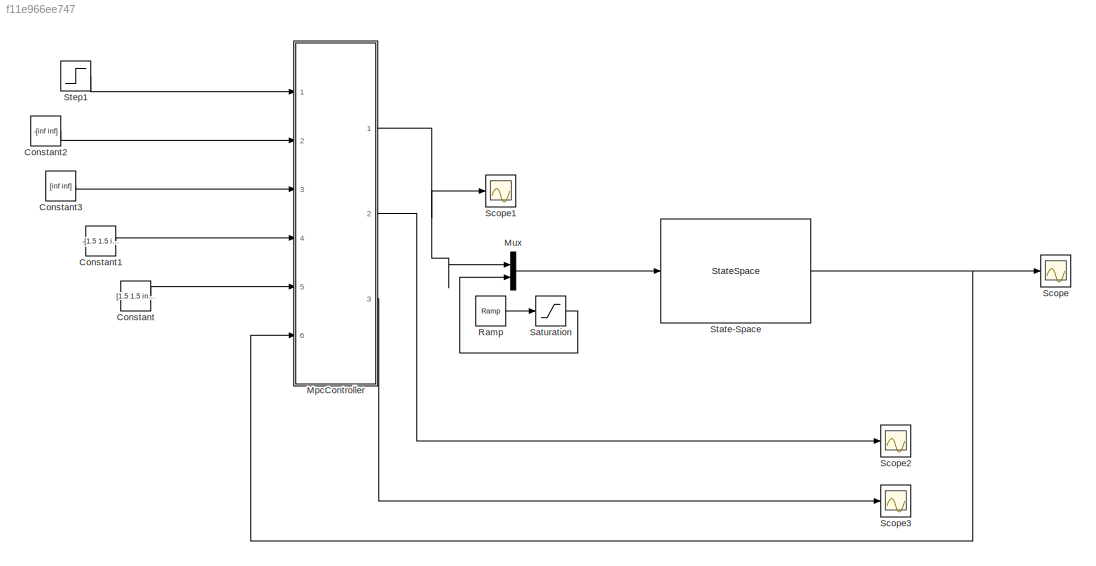
MODEL slx_f11e966ee747
KIND model
CONFIG AbsTol = auto
CONFIG EnableMultiTasking = off
CONFIG FixedStep = 0.001
CONFIG MaxStep = auto
CONFIG MinStep = auto
CONFIG RelTol = 1e-3
CONFIG SampleTimeConstraint = Unconstrained
CONFIG Solver = FixedStepAuto
CONFIG SolverName = FixedStepAuto
CONFIG StartTime = 0.0
CONFIG StopTime = 10
BLOCK [Constant] Constant
  Value = [1.5 1.5 inf inf]
BLOCK [Constant] Constant1
  Value = -[1.5 1.5 inf inf]
BLOCK [Constant] Constant2
  Value = -[inf inf]
BLOCK [Constant] Constant3
  Value = [inf inf]
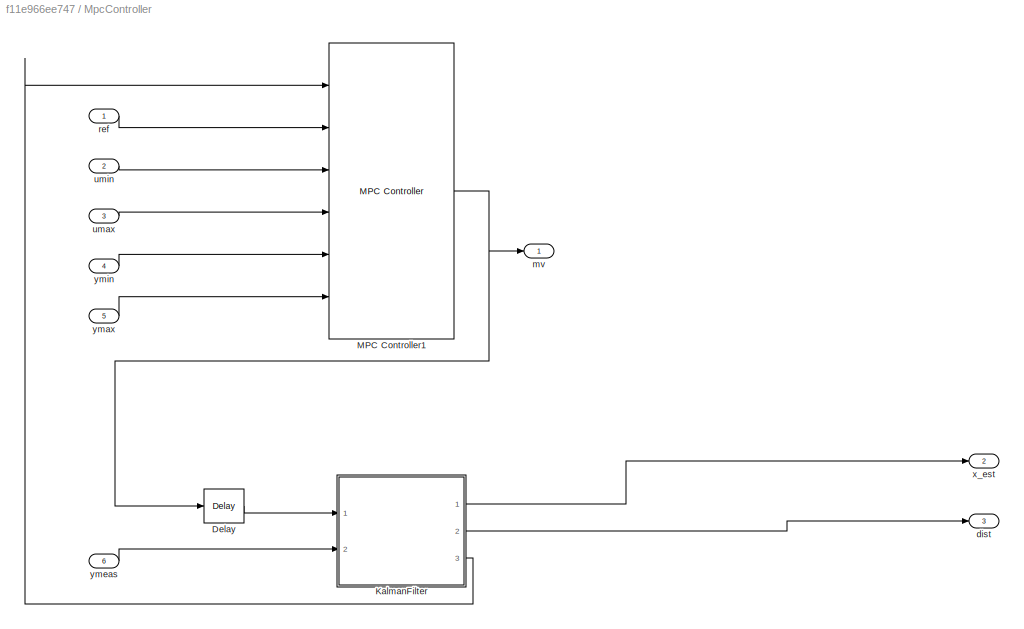
BLOCK [SubSystem] MpcController
  Ports = [6, 3]
  RequestExecContextInheritance = off
  SystemSampleTime = 0.001
  TreatAsAtomicUnit = on
  Variant = off
BLOCK [Delay] MpcController/Delay
  DelayLength = 1
  InputPortMap = u0
  Ports = [1, 1]
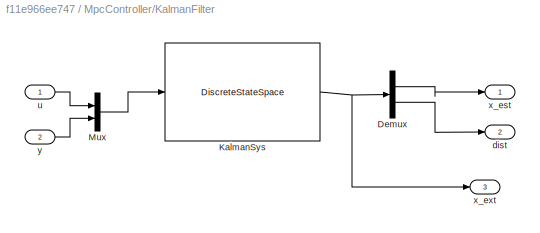
BLOCK [SubSystem] MpcController/KalmanFilter
  Ports = [2, 3]
  RequestExecContextInheritance = off
  TreatAsAtomicUnit = on
  Variant = off
BLOCK [Demux] MpcController/KalmanFilter/Demux
  DisplayOption = bar
  Outputs = [8 2]
  Ports = [1, 2]
BLOCK [DiscreteStateSpace] MpcController/KalmanFilter/KalmanSys
  A = A_kal-L_kal*Cm_kal
  B = [Bu_kal L_kal]
  C = eye(10) - M_kal*Cm_kal
  D = [zeros(10,2) M_kal]
  SampleTime = 0.001
BLOCK [Mux] MpcController/KalmanFilter/Mux
  DisplayOption = bar
  Inputs = 2
  Ports = [2, 1]
BLOCK [Outport] MpcController/KalmanFilter/dist
  IconDisplay = Port number
  Port = 2
BLOCK [Inport] MpcController/KalmanFilter/u
  IconDisplay = Port number
BLOCK [Outport] MpcController/KalmanFilter/x_est
  IconDisplay = Port number
BLOCK [Outport] MpcController/KalmanFilter/x_ext
  IconDisplay = Port number
  Port = 3
BLOCK [Inport] MpcController/KalmanFilter/y
  IconDisplay = Port number
  Port = 2
BLOCK [Reference] MpcController/MPC Controller1  REF=mpclib/MPC Controller  (lib defined in mdl_ae329e0e0455)
  Ports = [6, 1]
  SCDEnableBlockLinearizationSpecification = on
  SourceBlock = mpclib/MPC Controller
  SourceProductBaseCode = MP
  SourceProductName = Model Predictive Control Toolbox
  SourceType = MPC
BLOCK [Outport] MpcController/dist
  IconDisplay = Port number
  Port = 3
BLOCK [Outport] MpcController/mv
  IconDisplay = Port number
BLOCK [Inport] MpcController/ref
  IconDisplay = Port number
BLOCK [Inport] MpcController/umax
  IconDisplay = Port number
  Port = 3
BLOCK [Inport] MpcController/umin
  IconDisplay = Port number
  Port = 2
BLOCK [Outport] MpcController/x_est
  IconDisplay = Port number
  Port = 2
BLOCK [Inport] MpcController/ymax
  IconDisplay = Port number
  Port = 5
BLOCK [Inport] MpcController/ymeas
  IconDisplay = Port number
  Port = 6
BLOCK [Inport] MpcController/ymin
  IconDisplay = Port number
  Port = 4
BLOCK [Mux] Mux
  DisplayOption = bar
  Inputs = 2
  Ports = [2, 1]
BLOCK [Reference] Ramp  REF=simulink/Sources/Ramp
  Ports = [0, 1]
  SourceBlock = simulink/Sources/Ramp
  SourceProductBaseCode = SL
  SourceProductName = Simulink
  SourceType = Ramp
BLOCK [Saturate] Saturation
  InputPortMap = u0
  Ports = [1, 1]
  UpperLimit = 1
BLOCK [Scope] Scope
  NumInputPorts = 1
  Ports = [1]
  ScopeSpecificationString = Simulink.scopes.TimeScopeBlockCfg('CurrentConfiguration', extmgr.ConfigurationSet(extmgr.Configuration('Core','General UI',true),extmgr.Configuration('Core','Source UI',true),extmgr.Configuration('Sources','WiredSimulink',true),extmgr.Configuration('Visuals','Time Domain',true,'SerializedDisplays',{struct('MinYLimReal','-1.87783','MaxYLimReal','1.92153','YLabelReal','','MinYLimMag','0.00000','MaxY...<+1430ch>
BLOCK [Scope] Scope1
  NumInputPorts = 1
  Ports = [1]
  ScopeSpecificationString = Simulink.scopes.TimeScopeBlockCfg('CurrentConfiguration', extmgr.ConfigurationSet(extmgr.Configuration('Core','General UI',true),extmgr.Configuration('Core','Source UI',true),extmgr.Configuration('Sources','WiredSimulink',true,'DataLoggingVariableName','ScopeData1'),extmgr.Configuration('Visuals','Time Domain',true,'SerializedDisplays',{struct('MinYLimReal','-3.27191','MaxYLimReal','2.20725','YLab...<+1445ch>
BLOCK [Scope] Scope2
  NumInputPorts = 1
  Ports = [1]
  ScopeSpecificationString = Simulink.scopes.TimeScopeBlockCfg('CurrentConfiguration', extmgr.ConfigurationSet(extmgr.Configuration('Core','General UI',true),extmgr.Configuration('Core','Source UI',true),extmgr.Configuration('Sources','WiredSimulink',true,'DataLoggingVariableName','ScopeData2'),extmgr.Configuration('Visuals','Time Domain',true,'SerializedDisplays',{struct('MinYLimReal','-1.2978','MaxYLimReal','1.25656','YLabe...<+1615ch>
BLOCK [Scope] Scope3
  NumInputPorts = 1
  Ports = [1]
  ScopeSpecificationString = Simulink.scopes.TimeScopeBlockCfg('CurrentConfiguration', extmgr.ConfigurationSet(extmgr.Configuration('Core','General UI',true),extmgr.Configuration('Core','Source UI',true),extmgr.Configuration('Sources','WiredSimulink',true,'DataLoggingVariableName','ScopeData3'),extmgr.Configuration('Visuals','Time Domain',true,'SerializedDisplays',{struct('MinYLimReal','-0.03327','MaxYLimReal','1.02261','YLab...<+1443ch>
BLOCK [StateSpace] State-Space
  A = A
  B = B
  C = C
  D = D
  InitialCondition = 0
  Ports = [1, 1]
BLOCK [Step] Step1
  After = [0 0 0 0]
  Before = [0 0 0 0]
  SampleTime = 0.001
  Time = 0
LINE Constant1:1 -> MpcController:4
LINE Constant2:1 -> MpcController:2
LINE Constant3:1 -> MpcController:3
LINE Constant:1 -> MpcController:5
LINE MpcController/Delay:1 -> MpcController/KalmanFilter:1
LINE MpcController/KalmanFilter/Demux:1 -> MpcController/KalmanFilter/x_est:1
LINE MpcController/KalmanFilter/Demux:2 -> MpcController/KalmanFilter/dist:1
NET MpcController/KalmanFilter/KalmanSys:1 -> MpcController/KalmanFilter/Demux:1, MpcController/KalmanFilter/x_ext:1
LINE MpcController/KalmanFilter/Mux:1 -> MpcController/KalmanFilter/KalmanSys:1
LINE MpcController/KalmanFilter/u:1 -> MpcController/KalmanFilter/Mux:1
LINE MpcController/KalmanFilter/y:1 -> MpcController/KalmanFilter/Mux:2
LINE MpcController/KalmanFilter:1 -> MpcController/x_est:1
LINE MpcController/KalmanFilter:2 -> MpcController/dist:1
LINE MpcController/KalmanFilter:3 -> MpcController/MPC Controller1:1
NET MpcController/MPC Controller1:1 -> MpcController/Delay:1, MpcController/mv:1
LINE MpcController/ref:1 -> MpcController/MPC Controller1:2
LINE MpcController/umax:1 -> MpcController/MPC Controller1:4
LINE MpcController/umin:1 -> MpcController/MPC Controller1:3
LINE MpcController/ymax:1 -> MpcController/MPC Controller1:6
LINE MpcController/ymeas:1 -> MpcController/KalmanFilter:2
LINE MpcController/ymin:1 -> MpcController/MPC Controller1:5
NET MpcController:1 -> Mux:1, Scope1:1
LINE MpcController:2 -> Scope2:1
LINE MpcController:3 -> Scope3:1
LINE Mux:1 -> State-Space:1
LINE Ramp:1 -> Saturation:1
LINE Saturation:1 -> Mux:2
NET State-Space:1 -> MpcController:6, Scope:1
LINE Step1:1 -> MpcController:1
note: NET lines group one-source signal fan-out (src -> all destinations, sorted); 1:1 wires keep LINE
